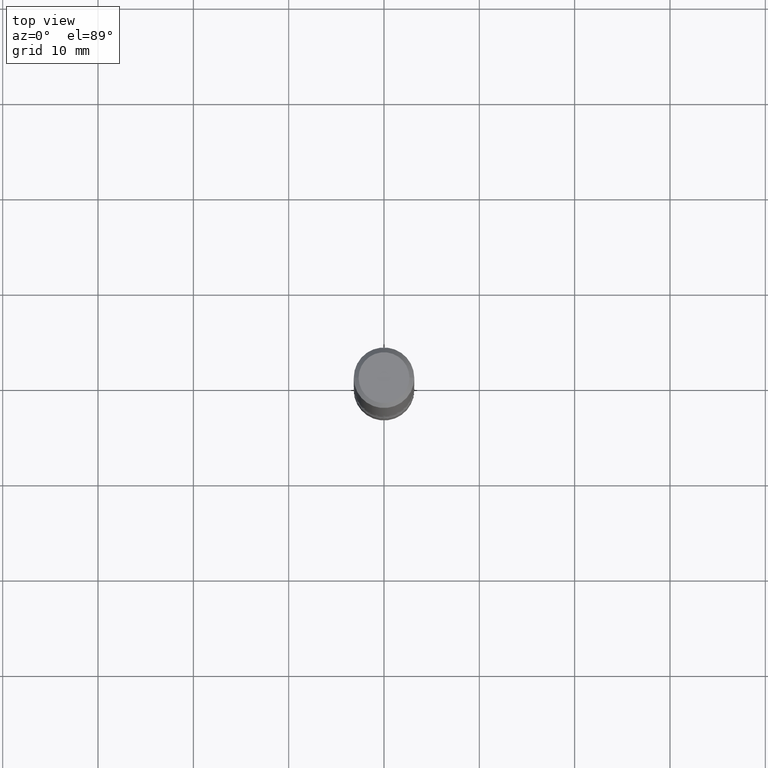
[diagram: clean part render]
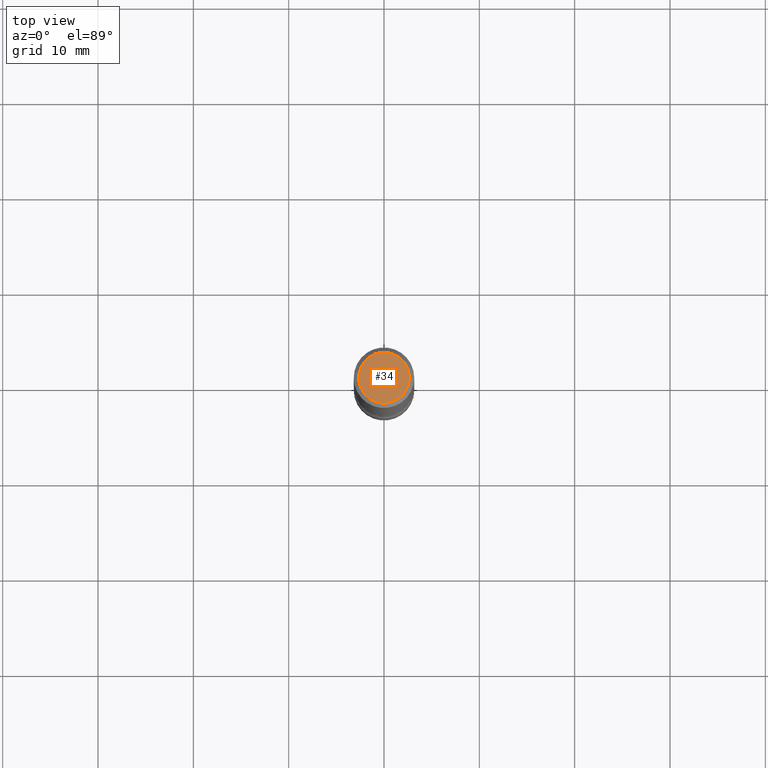
[diagram: same view with one face highlighted and labeled with its STEP entity id]
A machine part, top view. The second image highlights one B-rep face of the part: STEP entity #34.
In plain terms, the highlighted planar face has unit normal (0, -0, -1).
Its self-contained STEP definition (entity closure, byte-faithful):
#4 = CARTESIAN_POINT ( 'NONE',  ( -1.043851414335219820E-46, 1.490343170380447200E-32, 4.268512490100411279E-18 ) ) ;
#7 = PLANE ( 'NONE',  #43 ) ;
#10 = CIRCLE ( 'NONE', #245, 0.1049999999999997879 ) ;
#34 = ADVANCED_FACE ( 'NONE', ( #48 ), #7, .F. ) ;
#43 = AXIS2_PLACEMENT_3D ( 'NONE', #90, #233, #301 ) ;
#48 = FACE_OUTER_BOUND ( 'NONE', #366, .T. ) ;
#56 = ORIENTED_EDGE ( 'NONE', *, *, #105, .T. ) ;
#84 = VERTEX_POINT ( 'NONE', #528 ) ;
#86 = AXIS2_PLACEMENT_3D ( 'NONE', #4, #122, #287 ) ;
#90 = CARTESIAN_POINT ( 'NONE',  ( 7.332110811570564466E-16, 0.1049999999999997879, -3.644712843334793412E-16 ) ) ;
#100 = CARTESIAN_POINT ( 'NONE',  ( 0.1049999999999997879, -8.238720831321562839E-16, 4.268512490105855498E-18 ) ) ;
#105 = EDGE_CURVE ( 'NONE', #84, #150, #10, .T. ) ;
#109 = CIRCLE ( 'NONE', #86, 0.1049999999999997879 ) ;
#122 = DIRECTION ( 'NONE',  ( -2.445468806185136597E-29, 3.491481338843145583E-15, 1.000000000000000000 ) ) ;
#133 = DIRECTION ( 'NONE',  ( -2.445468806185136597E-29, 3.491481338843145583E-15, 1.000000000000000000 ) ) ;
#150 = VERTEX_POINT ( 'NONE', #100 ) ;
#176 = DIRECTION ( 'NONE',  ( 1.000000000000000000, -6.982962677686265922E-15, 4.876206205277404118E-29 ) ) ;
#233 = DIRECTION ( 'NONE',  ( 2.438088387897960049E-29, -3.491481338843145188E-15, -1.000000000000000000 ) ) ;
#245 = AXIS2_PLACEMENT_3D ( 'NONE', #530, #133, #176 ) ;
#287 = DIRECTION ( 'NONE',  ( 1.000000000000000000, -6.982962677686265922E-15, 4.876206205277404118E-29 ) ) ;
#301 = DIRECTION ( 'NONE',  ( -1.000000000000000000, 6.982962677686265922E-15, -4.876176775795935793E-29 ) ) ;
#366 = EDGE_LOOP ( 'NONE', ( #56, #548 ) ) ;
#485 = EDGE_CURVE ( 'NONE', #150, #84, #109, .T. ) ;
#528 = CARTESIAN_POINT ( 'NONE',  ( -0.1049999999999997879, 7.681258945454876027E-16, 4.268512490095161194E-18 ) ) ;
#530 = CARTESIAN_POINT ( 'NONE',  ( -1.043851414335219820E-46, 1.490343170380447200E-32, 4.268512490100411279E-18 ) ) ;
#548 = ORIENTED_EDGE ( 'NONE', *, *, #485, .T. ) ;